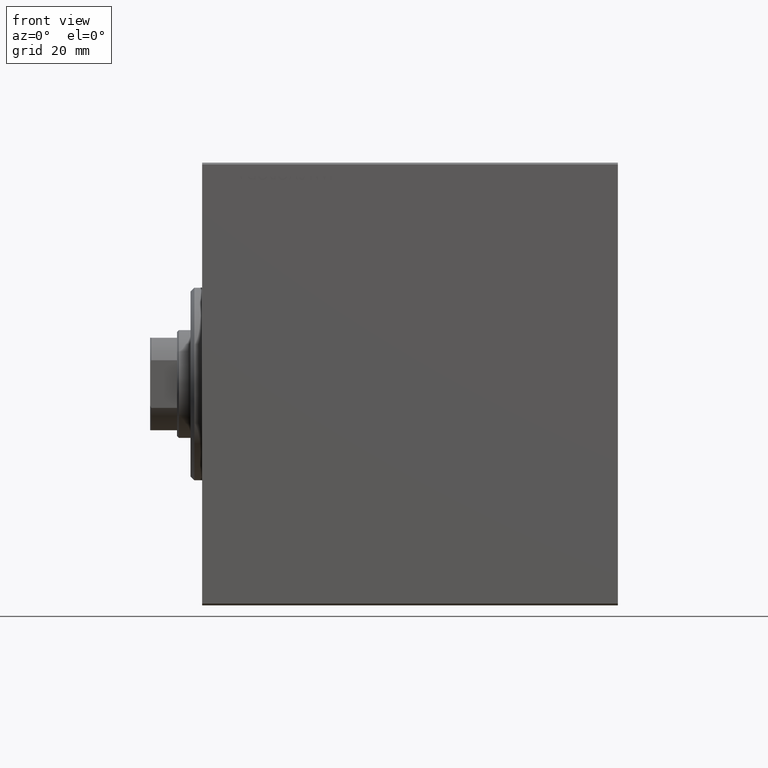
[diagram: clean part render]
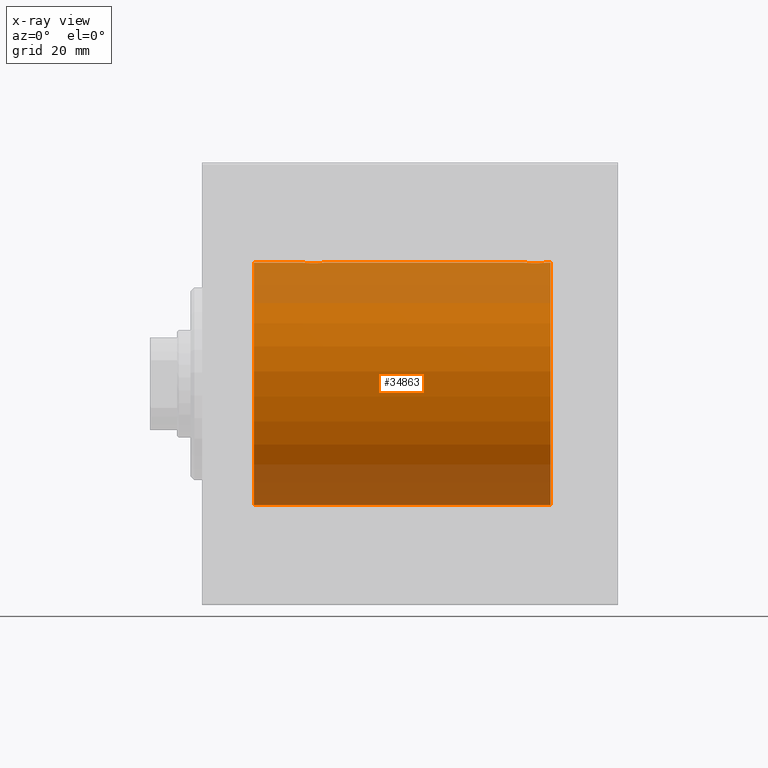
[diagram: x-ray — body ghosted, one internal face saturated and labeled with its STEP entity id]
A machine part, front view, then the same camera in x-ray: the body is ghosted and one INTERNAL B-rep face — a face not visible from any outside direction — is saturated and labeled: STEP entity #34863.
In plain terms, the highlighted cylindrical surface (partial cylindrical patch) has radius 31.5 mm, axis along (-1, -0, -0).
Its self-contained STEP definition (entity closure, byte-faithful):
#179 = CARTESIAN_POINT ( 'NONE',  ( 83.65339536257499731, -0.9669616078782070634, 31.48567319468626735 ) ) ;
#689 = LINE ( 'NONE', #28101, #24396 ) ;
#838 = CARTESIAN_POINT ( 'NONE',  ( 86.29953541025901131, -2.999845816735307036, 31.35683219171744796 ) ) ;
#1807 = CARTESIAN_POINT ( 'NONE',  ( 83.49999999999998579, -2.116947682205846230E-23, 31.50000000000000000 ) ) ;
#2061 = VERTEX_POINT ( 'NONE', #31349 ) ;
#2483 = CARTESIAN_POINT ( 'NONE',  ( 26.39582218725271900, -1.502389880413001144, 31.46458023642405166 ) ) ;
#3548 = CARTESIAN_POINT ( 'NONE',  ( 83.80285761163298730, -1.328004386210315024, 31.47251238182141719 ) ) ;
#3759 = DIRECTION ( 'NONE',  ( -1.000000000000000000, 0.000000000000000000, 0.000000000000000000 ) ) ;
#3983 = CARTESIAN_POINT ( 'NONE',  ( 83.49999999999998579, -0.1958045626907495562, 31.50000000000000000 ) ) ;
#4145 = EDGE_CURVE ( 'NONE', #21813, #9324, #18943, .T. ) ;
#4502 = DIRECTION ( 'NONE',  ( -1.000000000000000000, -0.000000000000000000, -0.000000000000000000 ) ) ;
#4625 = CARTESIAN_POINT ( 'NONE',  ( 89.50000000000000000, -2.415502498297804861E-16, 31.50000000000000000 ) ) ;
#5362 = CARTESIAN_POINT ( 'NONE',  ( 32.00000000000000000, -3.906065418435112189E-16, 31.50000000000000000 ) ) ;
#5650 = CARTESIAN_POINT ( 'NONE',  ( 31.25824501903266039, -1.984587626072074285, 31.43772577203672469 ) ) ;
#6089 = CARTESIAN_POINT ( 'NONE',  ( 28.60465888999904749, -2.980257240990054513, 31.35872356503797320 ) ) ;
#6218 = VECTOR ( 'NONE', #20173, 1000.000000000000000 ) ;
#6236 = VECTOR ( 'NONE', #26423, 1000.000000000000000 ) ;
#7158 = CARTESIAN_POINT ( 'NONE',  ( 84.51539640075337445, -2.258226318633800300, 31.41925597582826413 ) ) ;
#8578 = CARTESIAN_POINT ( 'NONE',  ( 31.38246872266631371, -1.833765390051040223, 31.44700610425690712 ) ) ;
#8675 = B_SPLINE_CURVE_WITH_KNOTS ( 'NONE', 3,
 ( #40039, #33285, #43190, #15768, #32608, #42743, #2483, #11954, #9018, #22494, #22283, #16217, #29680, #12391, #26074, #6089, #12845, #25641, #39370, #36449, #22724, #40260, #12175, #43409, #15989, #5650, #8578, #42966, #36213, #29912, #9466, #18896 ),
 .UNSPECIFIED., .F., .F.,
 ( 4, 2, 2, 2, 2, 2, 2, 2, 2, 2, 2, 2, 2, 2, 2, 4 ),
 ( 0.009384682587134639611, 0.009971088165454038837, 0.01055749374377343980, 0.01114389932209284076, 0.01173030490041223999, 0.01231671047873163921, 0.01290311605705104017, 0.01348952163537044113, 0.01407592721368984036, 0.01466233279200923958, 0.01524873837032864055, 0.01583514394864804151, 0.01642154952696744247, 0.01700795510528683996, 0.01759436068360624092, 0.01876717184024503243 ),
 .UNSPECIFIED. ) ;
#9018 = CARTESIAN_POINT ( 'NONE',  ( 26.73904537543869608, -1.981494824113328779, 31.43792153503155973 ) ) ;
#9324 = VERTEX_POINT ( 'NONE', #35253 ) ;
#9332 = EDGE_LOOP ( 'NONE', ( #41908, #26835, #38728, #39263, #27110, #21152, #26200, #18153 ) ) ;
#9466 = CARTESIAN_POINT ( 'NONE',  ( 32.00000000000001421, -0.3965830985361748495, 31.50000000000001421 ) ) ;
#10207 = CARTESIAN_POINT ( 'NONE',  ( 13.49999999999999822, 0.000000000000000000, 0.000000000000000000 ) ) ;
#10379 = AXIS2_PLACEMENT_3D ( 'NONE', #10207, #24567, #20985 ) ;
#10525 = CARTESIAN_POINT ( 'NONE',  ( 83.59580549261943361, -0.7775502215293907948, 31.49099686045558855 ) ) ;
#11343 = EDGE_CURVE ( 'NONE', #18375, #9324, #33886, .T. ) ;
#11405 = CARTESIAN_POINT ( 'NONE',  ( 88.32704225370268603, -2.387531469909779158, 31.40957782495775419 ) ) ;
#11919 = FACE_OUTER_BOUND ( 'NONE', #9332, .T. ) ;
#11954 = CARTESIAN_POINT ( 'NONE',  ( 26.61498557723073333, -1.830470878313877892, 31.44719957596828053 ) ) ;
#12175 = CARTESIAN_POINT ( 'NONE',  ( 30.50098156296146712, -2.604888532024788983, 31.39229907792058683 ) ) ;
#12296 = CARTESIAN_POINT ( 'NONE',  ( 89.50000000000000000, -2.415502498297804861E-16, 31.50000000000000000 ) ) ;
#12391 = CARTESIAN_POINT ( 'NONE',  ( 28.03055544341478722, -2.845838211243333138, 31.37127560316186603 ) ) ;
#12845 = CARTESIAN_POINT ( 'NONE',  ( 28.79953541025904684, -2.999845816735297266, 31.35683219171744796 ) ) ;
#13189 = VERTEX_POINT ( 'NONE', #39884 ) ;
#14252 = LINE ( 'NONE', #41663, #6236 ) ;
#14556 = CARTESIAN_POINT ( 'NONE',  ( 86.69582294439439352, -3.000152387858496805, 31.35680286115500337 ) ) ;
#15288 = DIRECTION ( 'NONE',  ( 0.000000000000000000, 0.000000000000000000, 1.000000000000000000 ) ) ;
#15768 = CARTESIAN_POINT ( 'NONE',  ( 26.09580549261944427, -0.7775502215293862429, 31.49099686045558144 ) ) ;
#15858 = AXIS2_PLACEMENT_3D ( 'NONE', #31831, #3759, #17479 ) ;
#15989 = CARTESIAN_POINT ( 'NONE',  ( 30.98143462873041898, -2.261012035264782227, 31.41905495618429356 ) ) ;
#16217 = CARTESIAN_POINT ( 'NONE',  ( 27.49543714993000876, -2.602826974226395862, 31.39247100434485560 ) ) ;
#17273 = CARTESIAN_POINT ( 'NONE',  ( 84.23904537543867832, -1.981494824113344322, 31.43792153503156683 ) ) ;
#17479 = DIRECTION ( 'NONE',  ( 0.000000000000000000, 0.000000000000000000, 1.000000000000000000 ) ) ;
#17481 = CARTESIAN_POINT ( 'NONE',  ( 87.27469094434374597, -2.904836261170115730, 31.36579955910872997 ) ) ;
#17704 = CARTESIAN_POINT ( 'NONE',  ( 83.51898490608482462, -0.3904857149112073711, 31.49817436802766935 ) ) ;
#18153 = ORIENTED_EDGE ( 'NONE', *, *, #42803, .F. ) ;
#18375 = VERTEX_POINT ( 'NONE', #37331 ) ;
#18570 = CARTESIAN_POINT ( 'NONE',  ( 88.75824501903265684, -1.984587626072075617, 31.43772577203671759 ) ) ;
#18896 = CARTESIAN_POINT ( 'NONE',  ( 32.00000000000000000, -3.906065418435112189E-16, 31.50000000000000000 ) ) ;
#18943 = CIRCLE ( 'NONE', #10379, 31.50000000000000000 ) ;
#20173 = DIRECTION ( 'NONE',  ( -1.000000000000000000, -0.000000000000000000, -0.000000000000000000 ) ) ;
#20641 = CARTESIAN_POINT ( 'NONE',  ( 83.49999999999998579, -2.116947682205846230E-23, 31.50000000000000000 ) ) ;
#20862 = CARTESIAN_POINT ( 'NONE',  ( 86.10465888999905815, -2.980257240990066947, 31.35872356503798031 ) ) ;
#20985 = DIRECTION ( 'NONE',  ( 0.000000000000000000, 0.000000000000000000, 1.000000000000000000 ) ) ;
#21152 = ORIENTED_EDGE ( 'NONE', *, *, #42024, .F. ) ;
#21384 = CYLINDRICAL_SURFACE ( 'NONE', #37856, 31.50000000000000000 ) ;
#21813 = VERTEX_POINT ( 'NONE', #36914 ) ;
#22283 = CARTESIAN_POINT ( 'NONE',  ( 27.16956308512997964, -2.384935707362437096, 31.40977595730572958 ) ) ;
#22494 = CARTESIAN_POINT ( 'NONE',  ( 27.01539640075335669, -2.258226318633785201, 31.41925597582825702 ) ) ;
#22724 = CARTESIAN_POINT ( 'NONE',  ( 29.96515729810641204, -2.847307171789037028, 31.37114183851420890 ) ) ;
#23226 = DIRECTION ( 'NONE',  ( -1.000000000000000000, -0.000000000000000000, -0.000000000000000000 ) ) ;
#23313 = EDGE_CURVE ( 'NONE', #38999, #43435, #26887, .T. ) ;
#24063 = EDGE_CURVE ( 'NONE', #18375, #25331, #8675, .T. ) ;
#24222 = CARTESIAN_POINT ( 'NONE',  ( 84.99543714992996968, -2.602826974226406076, 31.39247100434484850 ) ) ;
#24396 = VECTOR ( 'NONE', #41822, 1000.000000000000000 ) ;
#24567 = DIRECTION ( 'NONE',  ( -1.000000000000000000, 0.000000000000000000, 0.000000000000000000 ) ) ;
#25093 = CARTESIAN_POINT ( 'NONE',  ( 89.19529642359012200, -1.331741824817663122, 31.47235367475394341 ) ) ;
#25331 = VERTEX_POINT ( 'NONE', #5362 ) ;
#25641 = CARTESIAN_POINT ( 'NONE',  ( 29.19582294439440417, -3.000152387858486147, 31.35680286115499626 ) ) ;
#25703 = CARTESIAN_POINT ( 'NONE',  ( 90.50000000000000000, 0.000000000000000000, 31.50000000000000000 ) ) ;
#26074 = CARTESIAN_POINT ( 'NONE',  ( 28.22118087357680238, -2.903733559410683895, 31.36590199989303684 ) ) ;
#26200 = ORIENTED_EDGE ( 'NONE', *, *, #23313, .T. ) ;
#26423 = DIRECTION ( 'NONE',  ( -1.000000000000000000, -0.000000000000000000, -0.000000000000000000 ) ) ;
#26835 = ORIENTED_EDGE ( 'NONE', *, *, #29610, .T. ) ;
#26887 = B_SPLINE_CURVE_WITH_KNOTS ( 'NONE', 3,
 ( #20641, #3983, #17704, #10525, #179, #3548, #37497, #41756, #17273, #7158, #30966, #24222, #31405, #41538, #37946, #20862, #838, #14556, #40864, #17481, #31179, #42201, #39471, #11405, #42620, #18570, #28691, #41975, #25093, #35434, #42416, #4625 ),
 .UNSPECIFIED., .F., .F.,
 ( 4, 2, 2, 2, 2, 2, 2, 2, 2, 2, 2, 2, 2, 2, 2, 4 ),
 ( 0.009384682587134660428, 0.009971088165454063124, 0.01055749374377346582, 0.01114389932209286851, 0.01173030490041227121, 0.01231671047873167217, 0.01290311605705107313, 0.01348952163537047583, 0.01407592721368987679, 0.01466233279200927775, 0.01524873837032867871, 0.01583514394864807967, 0.01642154952696748410, 0.01700795510528688506, 0.01759436068360628602, 0.01876717184024507407 ),
 .UNSPECIFIED. ) ;
#27110 = ORIENTED_EDGE ( 'NONE', *, *, #24063, .T. ) ;
#28101 = CARTESIAN_POINT ( 'NONE',  ( 90.50000000000000000, 0.000000000000000000, 31.50000000000000000 ) ) ;
#28558 = CARTESIAN_POINT ( 'NONE',  ( 90.50000000000000000, 0.000000000000000000, 0.000000000000000000 ) ) ;
#28691 = CARTESIAN_POINT ( 'NONE',  ( 88.88246872266633147, -1.833765390051044442, 31.44700610425689291 ) ) ;
#29610 = EDGE_CURVE ( 'NONE', #2061, #21813, #14252, .T. ) ;
#29680 = CARTESIAN_POINT ( 'NONE',  ( 27.66760041900836953, -2.695056442718533507, 31.38458855656185875 ) ) ;
#29912 = CARTESIAN_POINT ( 'NONE',  ( 31.92020662950040943, -0.7905881588836116691, 31.49214662150068378 ) ) ;
#30966 = CARTESIAN_POINT ( 'NONE',  ( 84.66956308512997964, -2.384935707362449087, 31.40977595730572958 ) ) ;
#31179 = CARTESIAN_POINT ( 'NONE',  ( 87.46515729810640494, -2.847307171789044133, 31.37114183851420890 ) ) ;
#31349 = CARTESIAN_POINT ( 'NONE',  ( 90.50000000000000000, 3.857637417314162689E-15, -31.50000000000000000 ) ) ;
#31405 = CARTESIAN_POINT ( 'NONE',  ( 85.16760041900836598, -2.695056442718549494, 31.38458855656185875 ) ) ;
#31831 = CARTESIAN_POINT ( 'NONE',  ( 90.50000000000000000, 0.000000000000000000, 0.000000000000000000 ) ) ;
#32366 = CIRCLE ( 'NONE', #15858, 31.50000000000000000 ) ;
#32608 = CARTESIAN_POINT ( 'NONE',  ( 26.15339536257501507, -0.9669616078781987367, 31.48567319468626735 ) ) ;
#33285 = CARTESIAN_POINT ( 'NONE',  ( 26.00000000000001066, -0.1958045626907463088, 31.50000000000000711 ) ) ;
#33886 = LINE ( 'NONE', #44230, #6218 ) ;
#34518 = VECTOR ( 'NONE', #23226, 1000.000000000000000 ) ;
#34863 = ADVANCED_FACE ( 'NONE', ( #11919 ), #21384, .F. ) ;
#35253 = CARTESIAN_POINT ( 'NONE',  ( 13.49999999999999822, 0.000000000000000000, 31.50000000000000000 ) ) ;
#35434 = CARTESIAN_POINT ( 'NONE',  ( 89.42020662950039878, -0.7905881588836165541, 31.49214662150069088 ) ) ;
#36213 = CARTESIAN_POINT ( 'NONE',  ( 31.69529642359010424, -1.331741824817659348, 31.47235367475393630 ) ) ;
#36449 = CARTESIAN_POINT ( 'NONE',  ( 29.77469094434372821, -2.904836261170106404, 31.36579955910873707 ) ) ;
#36727 = LINE ( 'NONE', #25703, #34518 ) ;
#36914 = CARTESIAN_POINT ( 'NONE',  ( 13.49999999999999822, 3.857637417314162689E-15, -31.50000000000000000 ) ) ;
#37331 = CARTESIAN_POINT ( 'NONE',  ( 26.00000000000000355, -2.117263226567934635E-23, 31.50000000000000000 ) ) ;
#37497 = CARTESIAN_POINT ( 'NONE',  ( 83.89582218725269058, -1.502389880413010026, 31.46458023642405877 ) ) ;
#37856 = AXIS2_PLACEMENT_3D ( 'NONE', #28558, #4502, #15288 ) ;
#37946 = CARTESIAN_POINT ( 'NONE',  ( 85.72118087357682725, -2.903733559410697662, 31.36590199989305106 ) ) ;
#38728 = ORIENTED_EDGE ( 'NONE', *, *, #4145, .T. ) ;
#38999 = VERTEX_POINT ( 'NONE', #1807 ) ;
#39263 = ORIENTED_EDGE ( 'NONE', *, *, #11343, .F. ) ;
#39370 = CARTESIAN_POINT ( 'NONE',  ( 29.39114547339941552, -2.980809450819701834, 31.35867074198615967 ) ) ;
#39471 = CARTESIAN_POINT ( 'NONE',  ( 88.00098156296147067, -2.604888532024798309, 31.39229907792057972 ) ) ;
#39884 = CARTESIAN_POINT ( 'NONE',  ( 90.50000000000000000, 0.000000000000000000, 31.50000000000000000 ) ) ;
#40039 = CARTESIAN_POINT ( 'NONE',  ( 26.00000000000000355, -2.117263226567934635E-23, 31.50000000000000000 ) ) ;
#40260 = CARTESIAN_POINT ( 'NONE',  ( 30.32865414687508832, -2.696917666262907520, 31.38442820068731365 ) ) ;
#40864 = CARTESIAN_POINT ( 'NONE',  ( 86.89114547339943329, -2.980809450819711159, 31.35867074198615967 ) ) ;
#41538 = CARTESIAN_POINT ( 'NONE',  ( 85.53055544341479788, -2.845838211243349569, 31.37127560316188024 ) ) ;
#41663 = CARTESIAN_POINT ( 'NONE',  ( 90.50000000000000000, 3.857637417314162689E-15, -31.50000000000000000 ) ) ;
#41756 = CARTESIAN_POINT ( 'NONE',  ( 84.11498557723071201, -1.830470878313887884, 31.44719957596828053 ) ) ;
#41822 = DIRECTION ( 'NONE',  ( -1.000000000000000000, -0.000000000000000000, -0.000000000000000000 ) ) ;
#41908 = ORIENTED_EDGE ( 'NONE', *, *, #43949, .F. ) ;
#41975 = CARTESIAN_POINT ( 'NONE',  ( 89.10192140439151842, -1.506272792558327245, 31.46439306106695710 ) ) ;
#42024 = EDGE_CURVE ( 'NONE', #38999, #25331, #689, .T. ) ;
#42201 = CARTESIAN_POINT ( 'NONE',  ( 87.82865414687509542, -2.696917666262913738, 31.38442820068732075 ) ) ;
#42416 = CARTESIAN_POINT ( 'NONE',  ( 89.49999999999998579, -0.3965830985361750161, 31.50000000000000000 ) ) ;
#42620 = CARTESIAN_POINT ( 'NONE',  ( 88.48143462873041187, -2.261012035264784892, 31.41905495618427935 ) ) ;
#42743 = CARTESIAN_POINT ( 'NONE',  ( 26.30285761163300151, -1.328004386210305698, 31.47251238182140298 ) ) ;
#42803 = EDGE_CURVE ( 'NONE', #13189, #43435, #36727, .T. ) ;
#42966 = CARTESIAN_POINT ( 'NONE',  ( 31.60192140439154684, -1.506272792558323470, 31.46439306106697131 ) ) ;
#43190 = CARTESIAN_POINT ( 'NONE',  ( 26.01898490608483527, -0.3904857149112033743, 31.49817436802766935 ) ) ;
#43409 = CARTESIAN_POINT ( 'NONE',  ( 30.82704225370267892, -2.387531469909770276, 31.40957782495776129 ) ) ;
#43435 = VERTEX_POINT ( 'NONE', #12296 ) ;
#43949 = EDGE_CURVE ( 'NONE', #2061, #13189, #32366, .T. ) ;
#44230 = CARTESIAN_POINT ( 'NONE',  ( 90.50000000000000000, 0.000000000000000000, 31.50000000000000000 ) ) ;